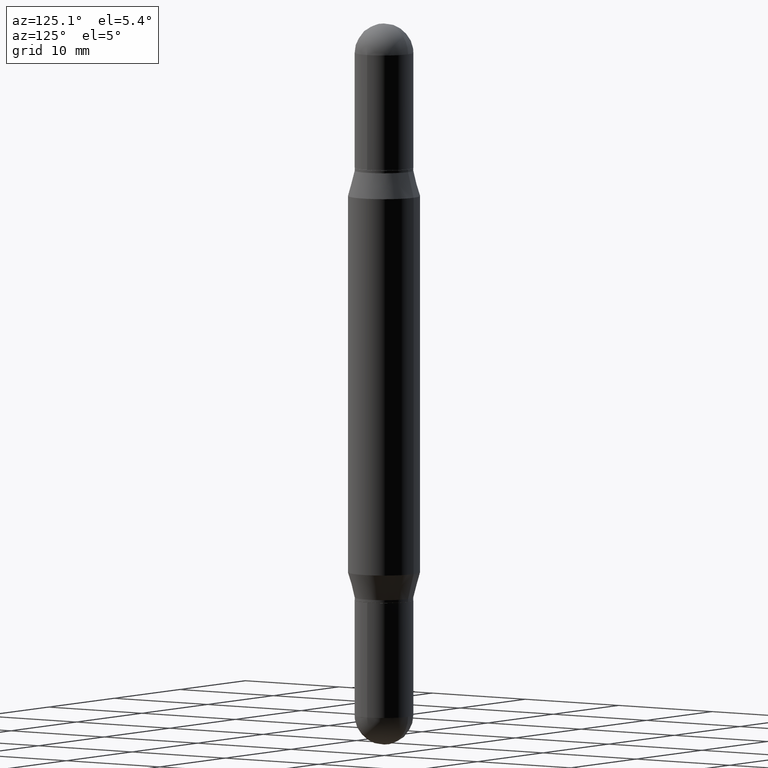
[diagram: clean part render]
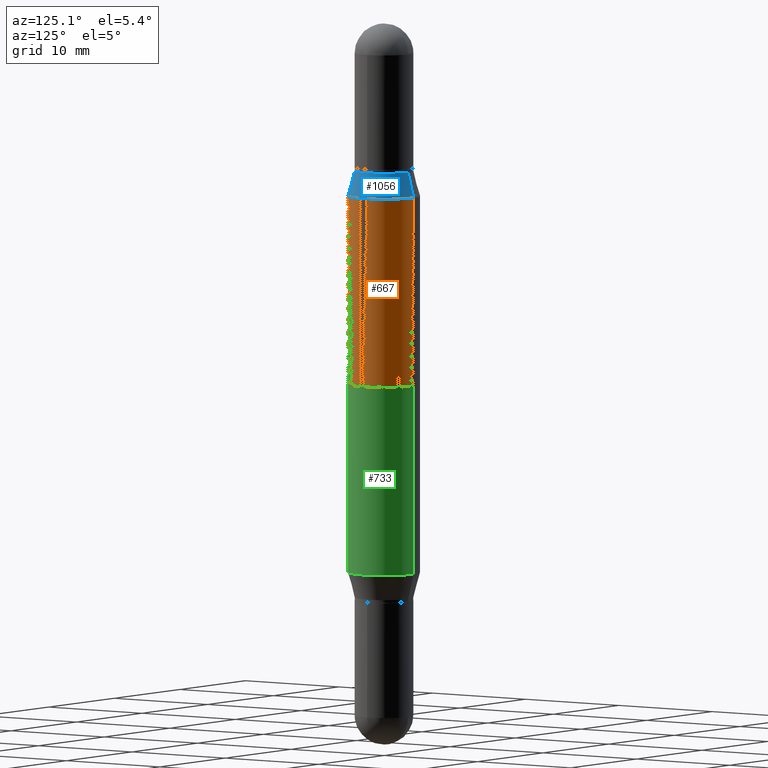
[diagram: same view with three faces highlighted in distinct colors, each labeled with its STEP entity id]
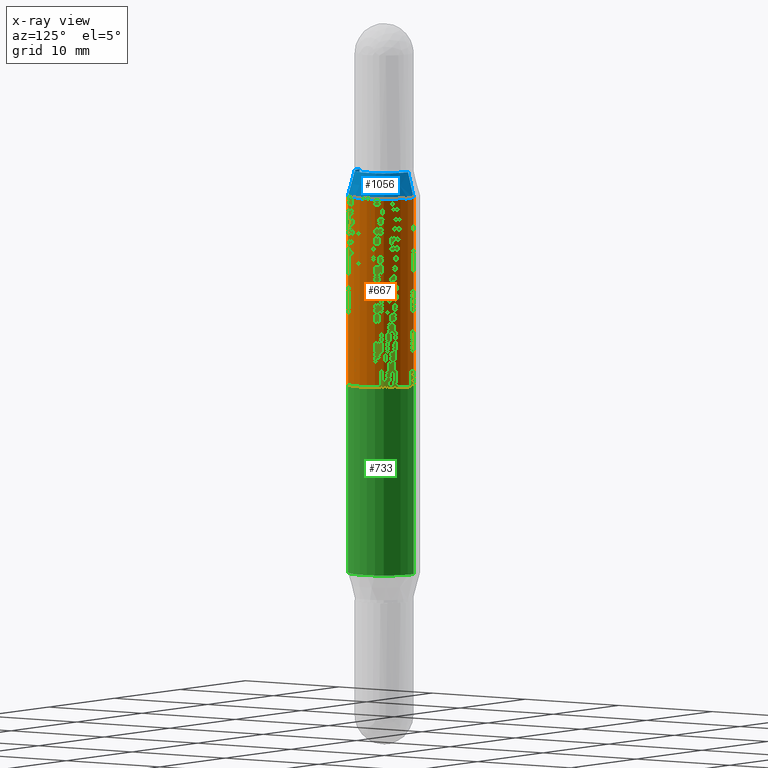
[diagram: x-ray of the same camera — body ghosted, the three highlighted faces saturated]
A machine part, auxiliary view with three faces highlighted in distinct colors.
The next image is the same camera in x-ray (body ghosted, the three faces saturated) — at least one of them is partly hidden behind the body in this view.
Their STEP definitions:

[orange] entity #667 — the highlighted cylindrical surface (edge-blend (fillet) strip) has radius 3.175 mm, axis along (-0, -0, -1).
#70 = VECTOR ( 'NONE', #1054, 39.37007874015748143 ) ;
#71 = VERTEX_POINT ( 'NONE', #1015 ) ;
#203 = VERTEX_POINT ( 'NONE', #508 ) ;
#254 = DIRECTION ( 'NONE',  ( -2.445552073783825007E-29, -3.479733710918447053E-15, -1.000000000000000000 ) ) ;
#270 = VERTEX_POINT ( 'NONE', #1025 ) ;
#283 = CARTESIAN_POINT ( 'NONE',  ( 3.056940092229781049E-29, -4.364202618628158775E-15, -1.250000000000000000 ) ) ;
#285 = EDGE_CURVE ( 'NONE', #1079, #71, #605, .T. ) ;
#294 = CYLINDRICAL_SURFACE ( 'NONE', #800, 0.1250000000000000000 ) ;
#312 = DIRECTION ( 'NONE',  ( 2.445552073783824727E-29, 3.479733710918447053E-15, 1.000000000000000000 ) ) ;
#374 = CARTESIAN_POINT ( 'NONE',  ( 0.000000000000000000, -8.713869757276216901E-15, -2.500000000000000000 ) ) ;
#458 = FACE_OUTER_BOUND ( 'NONE', #962, .T. ) ;
#461 = AXIS2_PLACEMENT_3D ( 'NONE', #283, #907, #631 ) ;
#474 = CARTESIAN_POINT ( 'NONE',  ( -8.728703347107832402E-16, -0.1250000000000087153, -2.499999999999999556 ) ) ;
#508 = CARTESIAN_POINT ( 'NONE',  ( -8.728703347107367960E-16, -0.1250000000000021094, -0.5975165914374894749 ) ) ;
#542 = EDGE_CURVE ( 'NONE', #203, #270, #637, .T. ) ;
#555 = AXIS2_PLACEMENT_3D ( 'NONE', #1078, #312, #930 ) ;
#594 = CIRCLE ( 'NONE', #555, 0.1250000000000000000 ) ;
#605 = LINE ( 'NONE', #1021, #642 ) ;
#628 = EDGE_CURVE ( 'NONE', #71, #270, #1001, .T. ) ;
#631 = DIRECTION ( 'NONE',  ( 0.000000000000000000, 1.000000000000000000, -4.370956789862821150E-15 ) ) ;
#637 = LINE ( 'NONE', #474, #70 ) ;
#642 = VECTOR ( 'NONE', #254, 39.37007874015748143 ) ;
#667 = ADVANCED_FACE ( 'NONE', ( #458 ), #294, .T. ) ;
#734 = ORIENTED_EDGE ( 'NONE', *, *, #831, .F. ) ;
#800 = AXIS2_PLACEMENT_3D ( 'NONE', #374, #971, #1053 ) ;
#812 = ORIENTED_EDGE ( 'NONE', *, *, #285, .F. ) ;
#831 = EDGE_CURVE ( 'NONE', #203, #1079, #594, .T. ) ;
#844 = ORIENTED_EDGE ( 'NONE', *, *, #542, .T. ) ;
#907 = DIRECTION ( 'NONE',  ( -0.000000000000000000, -3.485547902910486918E-15, -1.000000000000000000 ) ) ;
#930 = DIRECTION ( 'NONE',  ( -6.982962677686265922E-15, -1.000000000000000000, 3.278217592397115862E-15 ) ) ;
#962 = EDGE_LOOP ( 'NONE', ( #812, #734, #844, #995 ) ) ;
#971 = DIRECTION ( 'NONE',  ( -2.445552073783824727E-29, -3.479733710918447053E-15, -1.000000000000000000 ) ) ;
#995 = ORIENTED_EDGE ( 'NONE', *, *, #628, .F. ) ;
#1001 = CIRCLE ( 'NONE', #461, 0.1250000000000000000 ) ;
#1015 = CARTESIAN_POINT ( 'NONE',  ( 8.575622497214799023E-16, 0.1249999999999956285, -1.250000000000000666 ) ) ;
#1021 = CARTESIAN_POINT ( 'NONE',  ( 8.575622497214413467E-16, 0.1249999999999912847, -2.500000000000000444 ) ) ;
#1025 = CARTESIAN_POINT ( 'NONE',  ( -8.728703347107526719E-16, -0.1250000000000043854, -1.249999999999999556 ) ) ;
#1053 = DIRECTION ( 'NONE',  ( -6.982962677686265922E-15, -1.000000000000000000, 4.370956789862821150E-15 ) ) ;
#1054 = DIRECTION ( 'NONE',  ( -2.445552073783825007E-29, -3.479733710918447053E-15, -1.000000000000000000 ) ) ;
#1068 = CARTESIAN_POINT ( 'NONE',  ( 8.575622497214877909E-16, 0.1249999999999979045, -0.5975165914374903631 ) ) ;
#1078 = CARTESIAN_POINT ( 'NONE',  ( 4.652622245149366935E-29, -2.093734106038218116E-15, -0.5975165914374899190 ) ) ;
#1079 = VERTEX_POINT ( 'NONE', #1068 ) ;

[blue] entity #1056 — the highlighted conical surface has half-angle 15 deg.
#72 = CONICAL_SURFACE ( 'NONE', #352, 0.1015499999999999875, 0.2617993877991502960 ) ;
#86 = CIRCLE ( 'NONE', #228, 0.1015499999999999875 ) ;
#125 = ORIENTED_EDGE ( 'NONE', *, *, #477, .F. ) ;
#159 = DIRECTION ( 'NONE',  ( -1.807323732225330534E-15, -0.2588190451025250138, -0.9659258262890670910 ) ) ;
#187 = EDGE_LOOP ( 'NONE', ( #649, #125, #845, #267 ) ) ;
#203 = VERTEX_POINT ( 'NONE', #508 ) ;
#223 = DIRECTION ( 'NONE',  ( 1.775627540710965497E-15, 0.2588190451025182415, -0.9659258262890689783 ) ) ;
#228 = AXIS2_PLACEMENT_3D ( 'NONE', #1084, #750, #889 ) ;
#253 = VERTEX_POINT ( 'NONE', #711 ) ;
#267 = ORIENTED_EDGE ( 'NONE', *, *, #831, .T. ) ;
#312 = DIRECTION ( 'NONE',  ( 2.445552073783824727E-29, 3.479733710918447053E-15, 1.000000000000000000 ) ) ;
#340 = CARTESIAN_POINT ( 'NONE',  ( 4.866648626829811762E-29, -1.789199672548507475E-15, -0.5100000000000000089 ) ) ;
#345 = FACE_OUTER_BOUND ( 'NONE', #187, .T. ) ;
#352 = AXIS2_PLACEMENT_3D ( 'NONE', #340, #520, #436 ) ;
#436 = DIRECTION ( 'NONE',  ( -6.982962677686266711E-15, -1.000000000000000000, 3.362688323072702491E-15 ) ) ;
#477 = EDGE_CURVE ( 'NONE', #591, #253, #86, .T. ) ;
#508 = CARTESIAN_POINT ( 'NONE',  ( -8.728703347107367960E-16, -0.1250000000000021094, -0.5975165914374894749 ) ) ;
#520 = DIRECTION ( 'NONE',  ( -2.445552073783824727E-29, -3.479733710918447053E-15, -1.000000000000000000 ) ) ;
#555 = AXIS2_PLACEMENT_3D ( 'NONE', #1078, #312, #930 ) ;
#591 = VERTEX_POINT ( 'NONE', #972 ) ;
#594 = CIRCLE ( 'NONE', #555, 0.1250000000000000000 ) ;
#649 = ORIENTED_EDGE ( 'NONE', *, *, #946, .F. ) ;
#657 = LINE ( 'NONE', #994, #757 ) ;
#672 = LINE ( 'NONE', #1082, #1070 ) ;
#711 = CARTESIAN_POINT ( 'NONE',  ( 6.966835716737476402E-16, 0.1015499999999981973, -0.5100000000000003419 ) ) ;
#750 = DIRECTION ( 'NONE',  ( 2.445552073783824727E-29, 3.479733710918447053E-15, 1.000000000000000000 ) ) ;
#757 = VECTOR ( 'NONE', #223, 39.37007874015748143 ) ;
#826 = EDGE_CURVE ( 'NONE', #591, #203, #672, .T. ) ;
#831 = EDGE_CURVE ( 'NONE', #203, #1079, #594, .T. ) ;
#845 = ORIENTED_EDGE ( 'NONE', *, *, #826, .T. ) ;
#889 = DIRECTION ( 'NONE',  ( -6.982962677686266711E-15, -1.000000000000000000, 3.362688323072702491E-15 ) ) ;
#930 = DIRECTION ( 'NONE',  ( -6.982962677686265922E-15, -1.000000000000000000, 3.278217592397115862E-15 ) ) ;
#946 = EDGE_CURVE ( 'NONE', #253, #1079, #657, .T. ) ;
#972 = CARTESIAN_POINT ( 'NONE',  ( -7.091198599189916755E-16, -0.1015500000000017777, -0.5099999999999996758 ) ) ;
#994 = CARTESIAN_POINT ( 'NONE',  ( 6.966835716737475416E-16, 0.1015499999999981973, -0.5100000000000003419 ) ) ;
#1056 = ADVANCED_FACE ( 'NONE', ( #345 ), #72, .T. ) ;
#1068 = CARTESIAN_POINT ( 'NONE',  ( 8.575622497214877909E-16, 0.1249999999999979045, -0.5975165914374903631 ) ) ;
#1070 = VECTOR ( 'NONE', #159, 39.37007874015748143 ) ;
#1078 = CARTESIAN_POINT ( 'NONE',  ( 4.652622245149366935E-29, -2.093734106038218116E-15, -0.5975165914374899190 ) ) ;
#1079 = VERTEX_POINT ( 'NONE', #1068 ) ;
#1082 = CARTESIAN_POINT ( 'NONE',  ( -7.091198599189916755E-16, -0.1015500000000017777, -0.5099999999999996758 ) ) ;
#1084 = CARTESIAN_POINT ( 'NONE',  ( 4.866648626829811762E-29, -1.789199672548507475E-15, -0.5100000000000000089 ) ) ;

[green] entity #733 — the highlighted cylindrical surface (edge-blend (fillet) strip) has radius 3.175 mm, axis along (-0, -0, -1).
#62 = ORIENTED_EDGE ( 'NONE', *, *, #1112, .T. ) ;
#100 = CIRCLE ( 'NONE', #1033, 0.1250000000000000000 ) ;
#119 = CARTESIAN_POINT ( 'NONE',  ( -8.728703347107367960E-16, -0.1250000000000021094, -0.5975165914374894749 ) ) ;
#184 = CARTESIAN_POINT ( 'NONE',  ( 8.575622497214719151E-16, 0.1249999999999933525, -1.902483408562510636 ) ) ;
#230 = AXIS2_PLACEMENT_3D ( 'NONE', #359, #898, #625 ) ;
#269 = LINE ( 'NONE', #941, #896 ) ;
#300 = ORIENTED_EDGE ( 'NONE', *, *, #810, .T. ) ;
#306 = DIRECTION ( 'NONE',  ( -6.982962677686265922E-15, -1.000000000000000000, 3.278217592397115862E-15 ) ) ;
#324 = DIRECTION ( 'NONE',  ( 2.445552073783824727E-29, 3.479733710918447053E-15, 1.000000000000000000 ) ) ;
#346 = ORIENTED_EDGE ( 'NONE', *, *, #1011, .F. ) ;
#358 = ORIENTED_EDGE ( 'NONE', *, *, #944, .F. ) ;
#359 = CARTESIAN_POINT ( 'NONE',  ( 0.000000000000000000, -8.713869757276216901E-15, -2.500000000000000000 ) ) ;
#361 = LINE ( 'NONE', #454, #860 ) ;
#385 = VERTEX_POINT ( 'NONE', #119 ) ;
#403 = VERTEX_POINT ( 'NONE', #809 ) ;
#454 = CARTESIAN_POINT ( 'NONE',  ( -8.728703347107832402E-16, -0.1250000000000087153, -2.499999999999999556 ) ) ;
#581 = CARTESIAN_POINT ( 'NONE',  ( 4.652622245149366935E-29, -6.642258458836105412E-15, -1.902483408562510192 ) ) ;
#625 = DIRECTION ( 'NONE',  ( -6.982962677686265922E-15, -1.000000000000000000, 4.370956789862821150E-15 ) ) ;
#661 = DIRECTION ( 'NONE',  ( -6.982962677686265922E-15, -1.000000000000000000, 4.370956789862821150E-15 ) ) ;
#728 = DIRECTION ( 'NONE',  ( -2.445552073783825007E-29, -3.479733710918447053E-15, -1.000000000000000000 ) ) ;
#733 = ADVANCED_FACE ( 'NONE', ( #802 ), #1064, .T. ) ;
#759 = CARTESIAN_POINT ( 'NONE',  ( 4.652622245149366935E-29, -2.093734106038218116E-15, -0.5975165914374899190 ) ) ;
#802 = FACE_OUTER_BOUND ( 'NONE', #954, .T. ) ;
#809 = CARTESIAN_POINT ( 'NONE',  ( 8.575622497214877909E-16, 0.1249999999999979045, -0.5975165914374903631 ) ) ;
#810 = EDGE_CURVE ( 'NONE', #982, #1009, #100, .T. ) ;
#860 = VECTOR ( 'NONE', #728, 39.37007874015748143 ) ;
#863 = CARTESIAN_POINT ( 'NONE',  ( -8.728703347107365988E-16, -0.1250000000000066336, -1.902483408562509748 ) ) ;
#871 = DIRECTION ( 'NONE',  ( -2.445552073783825007E-29, -3.479733710918447053E-15, -1.000000000000000000 ) ) ;
#896 = VECTOR ( 'NONE', #871, 39.37007874015748143 ) ;
#898 = DIRECTION ( 'NONE',  ( -2.445552073783824727E-29, -3.479733710918447053E-15, -1.000000000000000000 ) ) ;
#938 = DIRECTION ( 'NONE',  ( -2.445552073783824727E-29, 3.491362094902526784E-15, 1.000000000000000000 ) ) ;
#941 = CARTESIAN_POINT ( 'NONE',  ( 8.575622497214413467E-16, 0.1249999999999912847, -2.500000000000000444 ) ) ;
#944 = EDGE_CURVE ( 'NONE', #385, #403, #983, .T. ) ;
#951 = AXIS2_PLACEMENT_3D ( 'NONE', #759, #324, #306 ) ;
#954 = EDGE_LOOP ( 'NONE', ( #346, #358, #62, #300 ) ) ;
#982 = VERTEX_POINT ( 'NONE', #863 ) ;
#983 = CIRCLE ( 'NONE', #951, 0.1250000000000000000 ) ;
#1009 = VERTEX_POINT ( 'NONE', #184 ) ;
#1011 = EDGE_CURVE ( 'NONE', #403, #1009, #269, .T. ) ;
#1033 = AXIS2_PLACEMENT_3D ( 'NONE', #581, #938, #661 ) ;
#1064 = CYLINDRICAL_SURFACE ( 'NONE', #230, 0.1250000000000000000 ) ;
#1112 = EDGE_CURVE ( 'NONE', #385, #982, #361, .T. ) ;